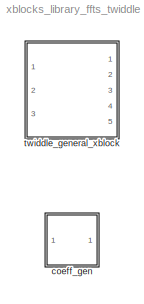
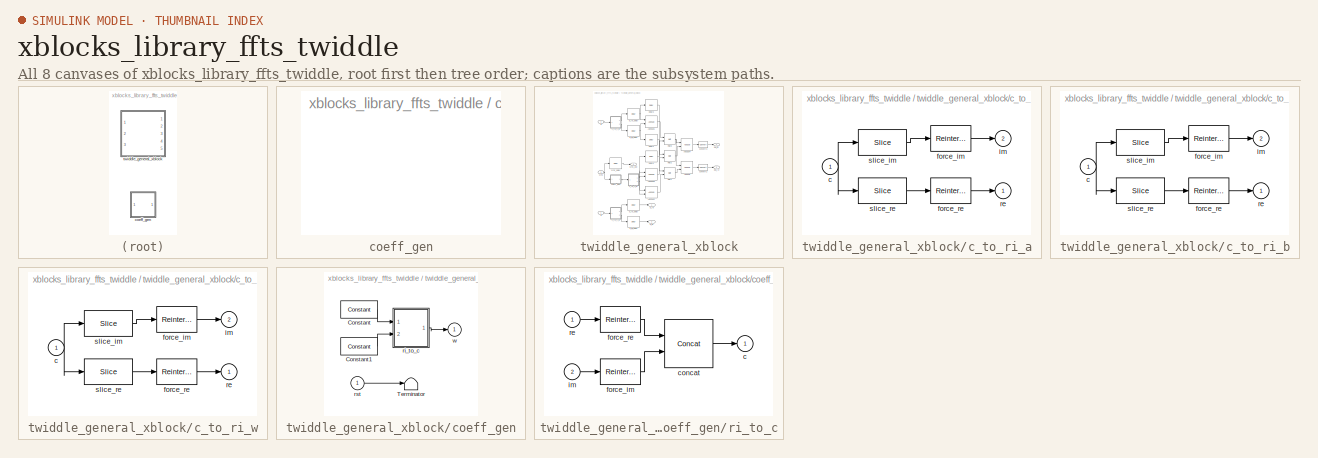
[diagram: thumbnail index - all 8 canvases of the model, root first then tree order]
MODEL xblocks_library_ffts_twiddle
KIND library
BLOCK [SubSystem] coeff_gen
  FunctionWithSeparateData = off
  MaskHideContents = off
  MinAlgLoopOccurrences = off
  Opaque = off
  OpenFcn = xblocks_library_ffts_twiddle_coeff_gen
  Ports = []
  PropExecContextOutsideSubsystem = off
  RTWSystemCode = Auto
  RequestExecContextInheritance = off
  SID = 1
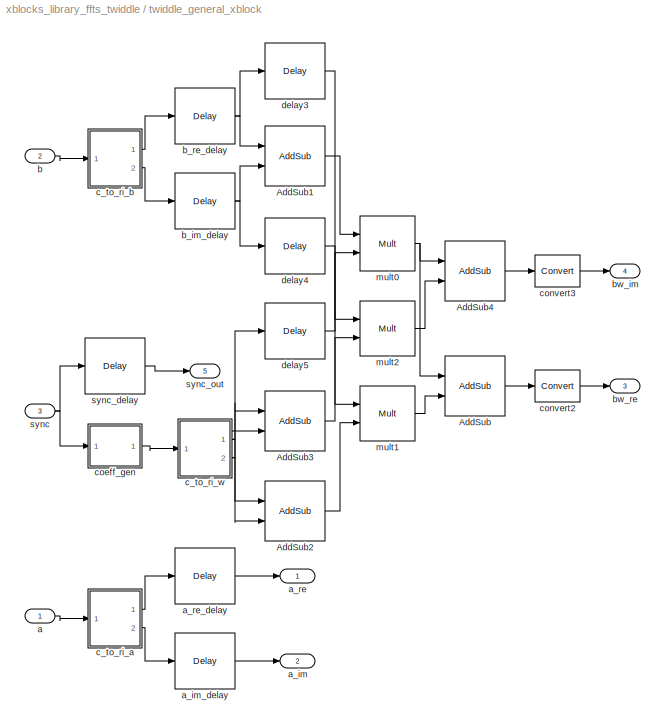
BLOCK [SubSystem] twiddle_general_xblock
  AttributesFormatString = data=(18,17)\ncoeffs=(17,15)\nVirtex5\n(Truncate,Wrap)\ntwiddle_general_3mult
  FunctionWithSeparateData = off
  MaskCallbackString = |||||||||||||||||||||
  MaskDescription = Generaized twiddle\n(xBlock version)
  MaskEnableString = on,on,on,on,on,on,on,on,on,on,on,on,on,on,on,on,on,on,on,on,on,on
  MaskHideContents = off
  MaskIconFrame = on
  MaskIconOpaque = on
  MaskIconRotate = none
  MaskIconUnits = autoscale
  MaskInitialization = config.source = str2func('fft_twiddle_init_xblock');\nconfig.toplevel = gcb;\nconfig.depend = get_dependlist('fft_twiddle');\nset_param(gcb,'LinkStatus','inactive');\nxBlock(config, ...\n      {config.toplevel,...\n      'FFTSize',FFTSize,...\n      'Coeffs',Coeffs,...\n      'ActualCoeffs',ActualCoeffs, ...\n      'StepPeriod',StepPeriod,...\n      'input_bit_width',input_bit_width,...\n      'co...<+625ch>
  MaskPortRotate = default
  MaskPromptString = FFT Size|Coefficients:|Actual Coefficients |Coefficient Step Period (2^?)|Coefficient Bit Width|Input Bit Width|BRAM Latency|Add Latency (Hardcoded to 2 in dsp48e mode)|Multiplication latency (Hardcoded to   in dsp48e mode)|Convert Latency|Input Latency|Mux Latency|Negate_latency|Quantization Behavior|Overflow Behavior|Architecture|Store coefficients in BRAM|Use behavioral HDL for multlipliers |Us...<+98ch>
  MaskSelfModifiable = on
  MaskStyleString = edit,edit,edit,edit,edit,edit,edit,edit,edit,edit,edit,edit,edit,popup(Truncate|Round  (unbiased: +/- Inf)|Round  (unbiased: Even Values)),popup(Wrap|Saturate|Error),popup(Virtex5),checkbox,checkbox,checkbox,popup(logic|multipliers),checkbox,checkbox
  MaskTabNameString = Basic,Basic,Basic,Basic,Basic,Basic,Latency,Latency,Latency,Latency,Latency,Latency,Latency,Implementation,Implementation,Implementation,Implementation,Implementation,Implementation,Implementation,Implementation,Implementation
  MaskToolTipString = on,on,on,on,on,on,on,on,on,on,on,on,on,on,on,on,on,on,on,on,on,on
  MaskTunableValueString = on,on,on,on,on,on,on,on,on,on,on,on,on,on,on,on,on,on,on,on,on,on
  MaskType = twiddle_general
  MaskValueString = 4|3||0|18|18|1|1|1|1|0|1|0|Truncate|Wrap|Virtex5|on|off|off|multipliers|on|off
  MaskVariables = FFTSize=@1;Coeffs=@2;ActualCoeffs=@3;StepPeriod=@4;coeff_bit_width=@5;input_bit_width=@6;bram_latency=@7;add_latency=@8;mult_latency=@9;conv_latency=@10;input_latency=@11;mux_latency=@12;negate_latency=@13;quantization=&14;overflow=&15;arch=&16;coeffs_bram=&17;use_hdl=&18;use_embedded=&19;opt_target=&20;biplex=&21;use_dsp48_mults=@22;
  MaskVisibilityString = on,on,on,on,on,on,on,on,on,on,on,on,on,on,on,on,on,on,on,on,on,on
  MinAlgLoopOccurrences = off
  Opaque = off
  Ports = [3, 5]
  PropExecContextOutsideSubsystem = off
  RTWSystemCode = Auto
  RequestExecContextInheritance = off
  SID = 4246
  UserData = DataTag0
  UserDataPersistent = on
BLOCK [Reference] twiddle_general_xblock/AddSub  REF=xbsIndex_r4/AddSub
  Ports = [2, 1]
  SID = 2191
  SourceBlock = xbsIndex_r4/AddSub
  SourceType = Xilinx Adder/Subtracter Block
  arith_type = Unsigned
  bin_pt = 14
  block_type = addsub
  block_version = 11.4
  dbl_ovrd = off
  en = off
  has_advanced_control = 0
  hw_selection = Fabric
  latency = 1
  mode = Subtraction
  n_bits = 16
  overflow = Wrap
  pipelined = off
  precision = Full
  quantization = Truncate
  sg_icon_stat = 60,60,2,1,white,blue,0,f9b6405b,right,
  sg_mask_display = fprintf('','COMMENT: begin icon graphics');\npatch([0 1 1 0 ],[0 0 1 1 ],[0.77 0.82 0.91]);\npatch([0.233333 0.0666667 0.3 0.0666667 0.233333 0.5 0.566667 0.633333 0.916667 0.7 0.483333 0.333333 0.583333 0.333333 0.483333 0.7 0.916667 0.633333 0.566667 0.5 0.233333 ],[0.1 0.266667 0.5 0.733333 0.9 0.9 0.833333 0.9 0.9 0.683333 0.9 0.75 0.5 0.25 0.1 0.316667 0.1 0.1 0.166667 0.1 0.1 ],[0.98 0.96 0....<+390ch>  <repeated x5 — deduplicated; at blocks: AddSub, AddSub1, AddSub2, AddSub3, AddSub4>
  sggui_pos = -1,-1,-1,-1
  use_behavioral_HDL = on
  use_carryin = off
  use_carryout = off
  xl_area = [0,0,0,0,0,0,0]
  xl_use_area = off
BLOCK [Reference] twiddle_general_xblock/AddSub1  REF=xbsIndex_r4/AddSub
  Ports = [2, 1]
  SID = 2182
  SourceBlock = xbsIndex_r4/AddSub
  SourceType = Xilinx Adder/Subtracter Block
  arith_type = Unsigned
  bin_pt = 14
  block_type = addsub
  block_version = 11.4
  dbl_ovrd = off
  en = off
  has_advanced_control = 0
  hw_selection = Fabric
  latency = 1
  mode = Addition
  n_bits = 16
  overflow = Wrap
  pipelined = off
  precision = Full
  quantization = Truncate
  sg_icon_stat = 60,60,2,1,white,blue,0,8ff03b5e,right,
  sggui_pos = -1,-1,-1,-1
  use_behavioral_HDL = on
  use_carryin = off
  use_carryout = off
  xl_area = [0,0,0,0,0,0,0]
  xl_use_area = off
BLOCK [Reference] twiddle_general_xblock/AddSub2  REF=xbsIndex_r4/AddSub
  Ports = [2, 1]
  SID = 2183
  SourceBlock = xbsIndex_r4/AddSub
  SourceType = Xilinx Adder/Subtracter Block
  arith_type = Unsigned
  bin_pt = 14
  block_type = addsub
  block_version = 11.4
  dbl_ovrd = off
  en = off
  has_advanced_control = 0
  hw_selection = Fabric
  latency = 1
  mode = Addition
  n_bits = 16
  overflow = Wrap
  pipelined = off
  precision = Full
  quantization = Truncate
  sg_icon_stat = 60,60,2,1,white,blue,0,8ff03b5e,right,
  sggui_pos = -1,-1,-1,-1
  use_behavioral_HDL = on
  use_carryin = off
  use_carryout = off
  xl_area = [0,0,0,0,0,0,0]
  xl_use_area = off
BLOCK [Reference] twiddle_general_xblock/AddSub3  REF=xbsIndex_r4/AddSub
  Ports = [2, 1]
  SID = 2184
  SourceBlock = xbsIndex_r4/AddSub
  SourceType = Xilinx Adder/Subtracter Block
  arith_type = Unsigned
  bin_pt = 14
  block_type = addsub
  block_version = 11.4
  dbl_ovrd = off
  en = off
  has_advanced_control = 0
  hw_selection = Fabric
  latency = 1
  mode = Subtraction
  n_bits = 16
  overflow = Wrap
  pipelined = off
  precision = Full
  quantization = Truncate
  sg_icon_stat = 60,60,2,1,white,blue,0,f9b6405b,right,
  sggui_pos = -1,-1,-1,-1
  use_behavioral_HDL = on
  use_carryin = off
  use_carryout = off
  xl_area = [0,0,0,0,0,0,0]
  xl_use_area = off
BLOCK [Reference] twiddle_general_xblock/AddSub4  REF=xbsIndex_r4/AddSub
  Ports = [2, 1]
  SID = 2192
  SourceBlock = xbsIndex_r4/AddSub
  SourceType = Xilinx Adder/Subtracter Block
  arith_type = Unsigned
  bin_pt = 14
  block_type = addsub
  block_version = 11.4
  dbl_ovrd = off
  en = off
  has_advanced_control = 0
  hw_selection = Fabric
  latency = 1
  mode = Addition
  n_bits = 16
  overflow = Wrap
  pipelined = off
  precision = Full
  quantization = Truncate
  sg_icon_stat = 60,60,2,1,white,blue,0,8ff03b5e,right,
  sggui_pos = -1,-1,-1,-1
  use_behavioral_HDL = on
  use_carryin = off
  use_carryout = off
  xl_area = [0,0,0,0,0,0,0]
  xl_use_area = off
BLOCK [Inport] twiddle_general_xblock/a
  IconDisplay = Port number
  SID = 4247
BLOCK [Outport] twiddle_general_xblock/a_im
  IconDisplay = Port number
  Port = 2
  SID = 4259
BLOCK [Reference] twiddle_general_xblock/a_im_delay  REF=xbsIndex_r4/Delay
  Ports = [1, 1]
  SID = 2158
  SourceBlock = xbsIndex_r4/Delay
  SourceType = Xilinx Delay Block
  block_type = delay
  block_version = 11.4
  dbl_ovrd = off
  en = off
  has_advanced_control = 0
  infoedit = Hardware notes: A delay line is a chain, each link of which is an SRL16 followed by a flip-flop.
  latency = 5
  reg_retiming = on
  sg_icon_stat = 60,56,1,1,white,blue,0,ec356abf,right,
  sg_mask_display = fprintf('','COMMENT: begin icon graphics');\npatch([0 1 1 0 ],[0 0 1 1 ],[0.77 0.82 0.91]);\npatch([0.25 0.1 0.316667 0.1 0.25 0.5 0.566667 0.633333 0.9 0.683333 0.483333 0.333333 0.533333 0.333333 0.483333 0.683333 0.9 0.633333 0.566667 0.5 0.25 ],[0.107143 0.267857 0.5 0.732143 0.892857 0.892857 0.821429 0.892857 0.892857 0.660714 0.875 0.714286 0.5 0.285714 0.125 0.339286 0.107143 0.107143 0.17...<+249ch>  <repeated x8 — deduplicated; at blocks: a_im_delay, a_re_delay, b_im_delay, b_re_delay, delay3, delay4, delay5, sync_delay>
  sggui_pos = -1,-1,-1,-1
  xl_area = [0,0,0,0,0,0,0]
  xl_use_area = off
BLOCK [Outport] twiddle_general_xblock/a_re
  IconDisplay = Port number
  SID = 4258
BLOCK [Reference] twiddle_general_xblock/a_re_delay  REF=xbsIndex_r4/Delay
  Ports = [1, 1]
  SID = 2157
  SourceBlock = xbsIndex_r4/Delay
  SourceType = Xilinx Delay Block
  block_type = delay
  block_version = 11.4
  dbl_ovrd = off
  en = off
  has_advanced_control = 0
  infoedit = Hardware notes: A delay line is a chain, each link of which is an SRL16 followed by a flip-flop.
  latency = 5
  reg_retiming = on
  sg_icon_stat = 60,56,1,1,white,blue,0,ec356abf,right,
  sggui_pos = -1,-1,-1,-1
  xl_area = [0,0,0,0,0,0,0]
  xl_use_area = off
BLOCK [Inport] twiddle_general_xblock/b
  IconDisplay = Port number
  Port = 2
  SID = 4248
BLOCK [Reference] twiddle_general_xblock/b_im_delay  REF=xbsIndex_r4/Delay
  Ports = [1, 1]
  SID = 2160
  SourceBlock = xbsIndex_r4/Delay
  SourceType = Xilinx Delay Block
  block_type = delay
  block_version = 11.4
  dbl_ovrd = off
  en = off
  has_advanced_control = 0
  infoedit = Hardware notes: A delay line is a chain, each link of which is an SRL16 followed by a flip-flop.
  latency = 1
  reg_retiming = on
  sg_icon_stat = 60,56,1,1,white,blue,0,07b98262,right,
  sggui_pos = -1,-1,-1,-1
  xl_area = [0,0,0,0,0,0,0]
  xl_use_area = off
BLOCK [Reference] twiddle_general_xblock/b_re_delay  REF=xbsIndex_r4/Delay
  Ports = [1, 1]
  SID = 2159
  SourceBlock = xbsIndex_r4/Delay
  SourceType = Xilinx Delay Block
  block_type = delay
  block_version = 11.4
  dbl_ovrd = off
  en = off
  has_advanced_control = 0
  infoedit = Hardware notes: A delay line is a chain, each link of which is an SRL16 followed by a flip-flop.
  latency = 1
  reg_retiming = on
  sg_icon_stat = 60,56,1,1,white,blue,0,07b98262,right,
  sggui_pos = -1,-1,-1,-1
  xl_area = [0,0,0,0,0,0,0]
  xl_use_area = off
BLOCK [Outport] twiddle_general_xblock/bw_im
  IconDisplay = Port number
  Port = 4
  SID = 4261
BLOCK [Outport] twiddle_general_xblock/bw_re
  IconDisplay = Port number
  Port = 3
  SID = 4260
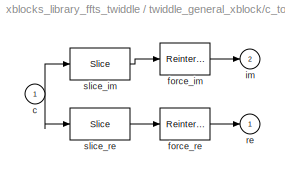
BLOCK [SubSystem] twiddle_general_xblock/c_to_ri_a
  AttributesFormatString = 18_17 r/i
  FunctionWithSeparateData = off
  MaskHideContents = off
  MinAlgLoopOccurrences = off
  Opaque = off
  Ports = [1, 2]
  PropExecContextOutsideSubsystem = off
  RTWSystemCode = Auto
  RequestExecContextInheritance = off
  SID = 2140
BLOCK [Inport] twiddle_general_xblock/c_to_ri_a/c
  IconDisplay = Port number
  SID = 2141
BLOCK [Reference] twiddle_general_xblock/c_to_ri_a/force_im  REF=xbsIndex_r4/Reinterpret
  Ports = [1, 1]
  SID = 2144
  SourceBlock = xbsIndex_r4/Reinterpret
  SourceType = Xilinx Type Reinterpreter Block
  arith_type = Signed  (2's comp)
  bin_pt = 17
  block_type = reinterpret
  block_version = 11.4
  force_arith_type = on
  force_bin_pt = on
  has_advanced_control = 0
  infoedit = Changes signal type without altering the binary representation.   You can changed the signal between signed and unsigned, and relocate the binary point.<br><br>Hardware notes: In hardware this block costs nothing.<br><br>Example:  Suppose the input is 6 bits wide, signed, with 2 fractional bits, and the output is forced to unsigned with 0 fractional bits.  Then an input of -2.0 (1110.00 in binary ...<+59ch>  <repeated x8 — deduplicated; at blocks: force_im, force_re>
  sg_icon_stat = 50,32,1,1,white,blue,0,6b04d0b0,right,
  sg_mask_display = fprintf('','COMMENT: begin icon graphics');\npatch([0 1 1 0 ],[0 0 1 1 ],[0.77 0.82 0.91]);\npatch([0.32 0.22 0.36 0.22 0.32 0.48 0.52 0.56 0.74 0.6 0.46 0.36 0.5 0.36 0.46 0.6 0.74 0.56 0.52 0.48 0.32 ],[0.09375 0.25 0.46875 0.6875 0.84375 0.84375 0.78125 0.84375 0.84375 0.625 0.84375 0.6875 0.46875 0.25 0.09375 0.3125 0.09375 0.09375 0.15625 0.09375 0.09375 ],[0.98 0.96 0.92]);\nplot([0 1 1 0 0 ...<+178ch>  <repeated x8 — deduplicated; at blocks: force_im, force_re>
  sggui_pos = -1,-1,-1,-1
BLOCK [Reference] twiddle_general_xblock/c_to_ri_a/force_re  REF=xbsIndex_r4/Reinterpret
  Ports = [1, 1]
  SID = 2145
  SourceBlock = xbsIndex_r4/Reinterpret
  SourceType = Xilinx Type Reinterpreter Block
  arith_type = Signed  (2's comp)
  bin_pt = 17
  block_type = reinterpret
  block_version = 11.4
  force_arith_type = on
  force_bin_pt = on
  has_advanced_control = 0
  sg_icon_stat = 50,32,1,1,white,blue,0,6b04d0b0,right,
  sggui_pos = -1,-1,-1,-1
BLOCK [Outport] twiddle_general_xblock/c_to_ri_a/im
  IconDisplay = Port number
  Port = 2
  SID = 2143
BLOCK [Outport] twiddle_general_xblock/c_to_ri_a/re
  IconDisplay = Port number
  SID = 2142
BLOCK [Reference] twiddle_general_xblock/c_to_ri_a/slice_im  REF=xbsIndex_r4/Slice
  Ports = [1, 1]
  SID = 2146
  SourceBlock = xbsIndex_r4/Slice
  SourceType = Xilinx Bit Slice Extractor Block
  base0 = LSB of Input
  base1 = MSB of Input
  bit0 = 0
  bit1 = 0
  block_type = slice
  block_version = 11.4
  boolean_output = off
  dbl_ovrd = off
  has_advanced_control = 0
  infoedit = Extracts a given range of bits from each input sample and presents it at the output.  The output type is ordinarily unsigned with binary point at zero, but can be Boolean when the slice is one bit wide.<br><br>Hardware notes: In hardware this block costs nothing.  <repeated x6 — deduplicated; at blocks: slice_im, slice_re>
  mode = Lower Bit Location + Width
  nbits = 18
  sg_icon_stat = 60,32,1,1,white,blue,0,1fd851a7,right,
  sg_mask_display = fprintf('','COMMENT: begin icon graphics');\npatch([0 1 1 0 ],[0 0 1 1 ],[0.77 0.82 0.91]);\npatch([0.35 0.266667 0.383333 0.266667 0.35 0.483333 0.516667 0.55 0.7 0.583333 0.466667 0.383333 0.5 0.383333 0.466667 0.583333 0.7 0.55 0.516667 0.483333 0.35 ],[0.09375 0.25 0.46875 0.6875 0.84375 0.84375 0.78125 0.84375 0.84375 0.625 0.84375 0.6875 0.46875 0.25 0.09375 0.3125 0.09375 0.09375 0.15625 0....<+241ch>  <repeated x6 — deduplicated; at blocks: slice_im, slice_re>
  sggui_pos = -1,-1,-1,-1
BLOCK [Reference] twiddle_general_xblock/c_to_ri_a/slice_re  REF=xbsIndex_r4/Slice
  Ports = [1, 1]
  SID = 2147
  SourceBlock = xbsIndex_r4/Slice
  SourceType = Xilinx Bit Slice Extractor Block
  base0 = LSB of Input
  base1 = MSB of Input
  bit0 = 0
  bit1 = 0
  block_type = slice
  block_version = 11.4
  boolean_output = off
  dbl_ovrd = off
  has_advanced_control = 0
  mode = Upper Bit Location + Width
  nbits = 18
  sg_icon_stat = 60,32,1,1,white,blue,0,1fd851a7,right,
  sggui_pos = -1,-1,-1,-1
BLOCK [SubSystem] twiddle_general_xblock/c_to_ri_b
  AttributesFormatString = 18_17 r/i
  FunctionWithSeparateData = off
  MaskHideContents = off
  MinAlgLoopOccurrences = off
  Opaque = off
  Ports = [1, 2]
  PropExecContextOutsideSubsystem = off
  RTWSystemCode = Auto
  RequestExecContextInheritance = off
  SID = 2148
BLOCK [Inport] twiddle_general_xblock/c_to_ri_b/c
  IconDisplay = Port number
  SID = 2149
BLOCK [Reference] twiddle_general_xblock/c_to_ri_b/force_im  REF=xbsIndex_r4/Reinterpret
  Ports = [1, 1]
  SID = 2152
  SourceBlock = xbsIndex_r4/Reinterpret
  SourceType = Xilinx Type Reinterpreter Block
  arith_type = Signed  (2's comp)
  bin_pt = 17
  block_type = reinterpret
  block_version = 11.4
  force_arith_type = on
  force_bin_pt = on
  has_advanced_control = 0
  sg_icon_stat = 50,32,1,1,white,blue,0,6b04d0b0,right,
  sggui_pos = -1,-1,-1,-1
BLOCK [Reference] twiddle_general_xblock/c_to_ri_b/force_re  REF=xbsIndex_r4/Reinterpret
  Ports = [1, 1]
  SID = 2153
  SourceBlock = xbsIndex_r4/Reinterpret
  SourceType = Xilinx Type Reinterpreter Block
  arith_type = Signed  (2's comp)
  bin_pt = 17
  block_type = reinterpret
  block_version = 11.4
  force_arith_type = on
  force_bin_pt = on
  has_advanced_control = 0
  sg_icon_stat = 50,32,1,1,white,blue,0,6b04d0b0,right,
  sggui_pos = -1,-1,-1,-1
BLOCK [Outport] twiddle_general_xblock/c_to_ri_b/im
  IconDisplay = Port number
  Port = 2
  SID = 2151
BLOCK [Outport] twiddle_general_xblock/c_to_ri_b/re
  IconDisplay = Port number
  SID = 2150
BLOCK [Reference] twiddle_general_xblock/c_to_ri_b/slice_im  REF=xbsIndex_r4/Slice
  Ports = [1, 1]
  SID = 2154
  SourceBlock = xbsIndex_r4/Slice
  SourceType = Xilinx Bit Slice Extractor Block
  base0 = LSB of Input
  base1 = MSB of Input
  bit0 = 0
  bit1 = 0
  block_type = slice
  block_version = 11.4
  boolean_output = off
  dbl_ovrd = off
  has_advanced_control = 0
  mode = Lower Bit Location + Width
  nbits = 18
  sg_icon_stat = 60,32,1,1,white,blue,0,1fd851a7,right,
  sggui_pos = -1,-1,-1,-1
BLOCK [Reference] twiddle_general_xblock/c_to_ri_b/slice_re  REF=xbsIndex_r4/Slice
  Ports = [1, 1]
  SID = 2155
  SourceBlock = xbsIndex_r4/Slice
  SourceType = Xilinx Bit Slice Extractor Block
  base0 = LSB of Input
  base1 = MSB of Input
  bit0 = 0
  bit1 = 0
  block_type = slice
  block_version = 11.4
  boolean_output = off
  dbl_ovrd = off
  has_advanced_control = 0
  mode = Upper Bit Location + Width
  nbits = 18
  sg_icon_stat = 60,32,1,1,white,blue,0,1fd851a7,right,
  sggui_pos = -1,-1,-1,-1
BLOCK [SubSystem] twiddle_general_xblock/c_to_ri_w
  FunctionWithSeparateData = off
  MaskHideContents = off
  MinAlgLoopOccurrences = off
  Opaque = off
  Ports = [1, 2]
  PropExecContextOutsideSubsystem = off
  RTWSystemCode = Auto
  RequestExecContextInheritance = off
  SID = 2174
BLOCK [Inport] twiddle_general_xblock/c_to_ri_w/c
  IconDisplay = Port number
  SID = 2175
BLOCK [Reference] twiddle_general_xblock/c_to_ri_w/force_im  REF=xbsIndex_r4/Reinterpret
  Ports = [1, 1]
  SID = 2178
  SourceBlock = xbsIndex_r4/Reinterpret
  SourceType = Xilinx Type Reinterpreter Block
  arith_type = Signed  (2's comp)
  bin_pt = 15
  block_type = reinterpret
  block_version = 11.4
  force_arith_type = on
  force_bin_pt = on
  has_advanced_control = 0
  sg_icon_stat = 50,32,1,1,white,blue,0,6b04d0b0,right,
  sggui_pos = -1,-1,-1,-1
BLOCK [Reference] twiddle_general_xblock/c_to_ri_w/force_re  REF=xbsIndex_r4/Reinterpret
  Ports = [1, 1]
  SID = 2179
  SourceBlock = xbsIndex_r4/Reinterpret
  SourceType = Xilinx Type Reinterpreter Block
  arith_type = Signed  (2's comp)
  bin_pt = 15
  block_type = reinterpret
  block_version = 11.4
  force_arith_type = on
  force_bin_pt = on
  has_advanced_control = 0
  sg_icon_stat = 50,32,1,1,white,blue,0,6b04d0b0,right,
  sggui_pos = -1,-1,-1,-1
BLOCK [Outport] twiddle_general_xblock/c_to_ri_w/im
  IconDisplay = Port number
  Port = 2
  SID = 2177
BLOCK [Outport] twiddle_general_xblock/c_to_ri_w/re
  IconDisplay = Port number
  SID = 2176
BLOCK [Reference] twiddle_general_xblock/c_to_ri_w/slice_im  REF=xbsIndex_r4/Slice
  Ports = [1, 1]
  SID = 2180
  SourceBlock = xbsIndex_r4/Slice
  SourceType = Xilinx Bit Slice Extractor Block
  base0 = LSB of Input
  base1 = MSB of Input
  bit0 = 0
  bit1 = 0
  block_type = slice
  block_version = 11.4
  boolean_output = off
  dbl_ovrd = off
  has_advanced_control = 0
  mode = Lower Bit Location + Width
  nbits = 17
  sg_icon_stat = 60,32,1,1,white,blue,0,1fd851a7,right,
  sggui_pos = -1,-1,-1,-1
BLOCK [Reference] twiddle_general_xblock/c_to_ri_w/slice_re  REF=xbsIndex_r4/Slice
  Ports = [1, 1]
  SID = 2181
  SourceBlock = xbsIndex_r4/Slice
  SourceType = Xilinx Bit Slice Extractor Block
  base0 = LSB of Input
  base1 = MSB of Input
  bit0 = 0
  bit1 = 0
  block_type = slice
  block_version = 11.4
  boolean_output = off
  dbl_ovrd = off
  has_advanced_control = 0
  mode = Upper Bit Location + Width
  nbits = 17
  sg_icon_stat = 60,32,1,1,white,blue,0,1fd851a7,right,
  sggui_pos = -1,-1,-1,-1
BLOCK [SubSystem] twiddle_general_xblock/coeff_gen
  FunctionWithSeparateData = off
  MaskHideContents = off
  MinAlgLoopOccurrences = off
  Opaque = off
  Ports = [1, 1]
  PropExecContextOutsideSubsystem = off
  RTWSystemCode = Auto
  RequestExecContextInheritance = off
  SID = 2161
BLOCK [Reference] twiddle_general_xblock/coeff_gen/Constant  REF=xbsIndex_r4/Constant
  Ports = [0, 1]
  SID = 2165
  SourceBlock = xbsIndex_r4/Constant
  SourceType = Xilinx Constant Block Block
  arith_type = Signed (2's comp)
  bin_pt = 16
  block_type = constant
  block_version = 11.4
  carry = CIN
  const = -0.707107543945312
  dbl_ovrd = off
  dsp48_infoedit = The use of this block for DSP48 instructions is deprecated.  Please use the Opmode block.
  equ = P=C
  explicit_period = on
  has_advanced_control = 0
  inp1 = P
  inp2 = PCIN>>17
  n_bits = 18
  opr = +
  opselect = C
  period = 1
  sg_icon_stat = 55,26,0,1,white,blue,0,b712d0e0,right,
  sg_mask_display = fprintf('','COMMENT: begin icon graphics');\npatch([0 1 1 0 ],[0 0 1 1 ],[0.77 0.82 0.91]);\npatch([0.363636 0.290909 0.4 0.290909 0.363636 0.490909 0.527273 0.563636 0.690909 0.581818 0.472727 0.4 0.509091 0.4 0.472727 0.581818 0.690909 0.563636 0.527273 0.490909 0.363636 ],[0.115385 0.269231 0.5 0.730769 0.884615 0.884615 0.807692 0.884615 0.884615 0.653846 0.884615 0.730769 0.5 0.269231 0.11538...<+297ch>
  sggui_pos = -1,-1,-1,-1
BLOCK [Reference] twiddle_general_xblock/coeff_gen/Constant1  REF=xbsIndex_r4/Constant
  Ports = [0, 1]
  SID = 2166
  SourceBlock = xbsIndex_r4/Constant
  SourceType = Xilinx Constant Block Block
  arith_type = Signed (2's comp)
  bin_pt = 16
  block_type = constant
  block_version = 11.4
  carry = CIN
  const = -0.707107543945312
  dbl_ovrd = off
  dsp48_infoedit = The use of this block for DSP48 instructions is deprecated.  Please use the Opmode block.
  equ = P=C
  explicit_period = on
  has_advanced_control = 0
  inp1 = P
  inp2 = PCIN>>17
  n_bits = 18
  opr = +
  opselect = C
  period = 1
  sg_icon_stat = 55,26,0,1,white,blue,0,b712d0e0,right,
  sg_mask_display = fprintf('','COMMENT: begin icon graphics');\npatch([0 1 1 0 ],[0 0 1 1 ],[0.77 0.82 0.91]);\npatch([0.363636 0.290909 0.4 0.290909 0.363636 0.490909 0.527273 0.563636 0.690909 0.581818 0.472727 0.4 0.509091 0.4 0.472727 0.581818 0.690909 0.563636 0.527273 0.490909 0.363636 ],[0.115385 0.269231 0.5 0.730769 0.884615 0.884615 0.807692 0.884615 0.884615 0.653846 0.884615 0.730769 0.5 0.269231 0.11538...<+297ch>
  sggui_pos = -1,-1,-1,-1
BLOCK [Terminator] twiddle_general_xblock/coeff_gen/Terminator
  SID = 2164
BLOCK [SubSystem] twiddle_general_xblock/coeff_gen/ri_to_c
  FunctionWithSeparateData = off
  MaskHideContents = off
  MinAlgLoopOccurrences = off
  Opaque = off
  Ports = [2, 1]
  PropExecContextOutsideSubsystem = off
  RTWSystemCode = Auto
  RequestExecContextInheritance = off
  SID = 2167
BLOCK [Outport] twiddle_general_xblock/coeff_gen/ri_to_c/c
  IconDisplay = Port number
  SID = 2170
BLOCK [Reference] twiddle_general_xblock/coeff_gen/ri_to_c/concat  REF=xbsIndex_r4/Concat
  Ports = [2, 1]
  SID = 2171
  SourceBlock = xbsIndex_r4/Concat
  SourceType = Xilinx Bus Concatenator Block
  block_type = concat
  block_version = 11.4
  dbl_ovrd = off
  has_advanced_control = 0
  infoedit = Concatenates two or more inputs.  Output will be cast to an unsigned value with the binary point at zero.
  num_inputs = 2
  sg_icon_stat = 60,60,2,1,white,blue,0,97b7e8d2,right,
  sg_mask_display = fprintf('','COMMENT: begin icon graphics');\npatch([0 1 1 0 ],[0 0 1 1 ],[0.77 0.82 0.91]);\npatch([0.233333 0.0666667 0.3 0.0666667 0.233333 0.5 0.566667 0.633333 0.916667 0.7 0.483333 0.333333 0.583333 0.333333 0.483333 0.7 0.916667 0.633333 0.566667 0.5 0.233333 ],[0.1 0.266667 0.5 0.733333 0.9 0.9 0.833333 0.9 0.9 0.683333 0.9 0.75 0.5 0.25 0.1 0.316667 0.1 0.1 0.166667 0.1 0.1 ],[0.98 0.96 0....<+252ch>
  sggui_pos = -1,-1,-1,-1
BLOCK [Reference] twiddle_general_xblock/coeff_gen/ri_to_c/force_im  REF=xbsIndex_r4/Reinterpret
  Ports = [1, 1]
  SID = 2172
  SourceBlock = xbsIndex_r4/Reinterpret
  SourceType = Xilinx Type Reinterpreter Block
  arith_type = Unsigned
  bin_pt = 0
  block_type = reinterpret
  block_version = 11.4
  force_arith_type = on
  force_bin_pt = on
  has_advanced_control = 0
  sg_icon_stat = 50,32,1,1,white,blue,0,6b04d0b0,right,
  sggui_pos = -1,-1,-1,-1
BLOCK [Reference] twiddle_general_xblock/coeff_gen/ri_to_c/force_re  REF=xbsIndex_r4/Reinterpret
  Ports = [1, 1]
  SID = 2173
  SourceBlock = xbsIndex_r4/Reinterpret
  SourceType = Xilinx Type Reinterpreter Block
  arith_type = Unsigned
  bin_pt = 0
  block_type = reinterpret
  block_version = 11.4
  force_arith_type = on
  force_bin_pt = on
  has_advanced_control = 0
  sg_icon_stat = 50,32,1,1,white,blue,0,6b04d0b0,right,
  sggui_pos = -1,-1,-1,-1
BLOCK [Inport] twiddle_general_xblock/coeff_gen/ri_to_c/im
  IconDisplay = Port number
  Port = 2
  SID = 2169
BLOCK [Inport] twiddle_general_xblock/coeff_gen/ri_to_c/re
  IconDisplay = Port number
  SID = 2168
BLOCK [Inport] twiddle_general_xblock/coeff_gen/rst
  IconDisplay = Port number
  SID = 2162
BLOCK [Outport] twiddle_general_xblock/coeff_gen/w
  IconDisplay = Port number
  SID = 2163
BLOCK [Reference] twiddle_general_xblock/convert2  REF=xbsIndex_r4/Convert
  Ports = [1, 1]
  SID = 2193
  SourceBlock = xbsIndex_r4/Convert
  SourceType = Xilinx Type Converter Block
  arith_type = Signed  (2's comp)
  bin_pt = 19
  block_type = convert
  block_version = 11.4
  dbl_ovrd = off
  has_advanced_control = 0
  infoedit = Hardware notes: rounding and saturating require hardware resources; truncating and wrapping do not.
  latency = 0
  n_bits = 23
  overflow = Wrap
  pipeline = on
  quantization = Truncate
  sg_icon_stat = 45,32,1,1,white,blue,0,edca21da,right,
  sg_mask_display = fprintf('','COMMENT: begin icon graphics');\npatch([0 1 1 0 ],[0 0 1 1 ],[0.77 0.82 0.91]);\npatch([0.311111 0.2 0.355556 0.2 0.311111 0.488889 0.533333 0.577778 0.777778 0.622222 0.466667 0.355556 0.511111 0.355556 0.466667 0.622222 0.777778 0.577778 0.533333 0.488889 0.311111 ],[0.09375 0.25 0.46875 0.6875 0.84375 0.84375 0.78125 0.84375 0.84375 0.625 0.84375 0.6875 0.46875 0.25 0.09375 0.3125 0...<+265ch>
  sggui_pos = -1,-1,-1,-1
  xl_area = [0,0,0,0,0,0,0]
  xl_use_area = off
BLOCK [Reference] twiddle_general_xblock/convert3  REF=xbsIndex_r4/Convert
  Ports = [1, 1]
  SID = 2194
  SourceBlock = xbsIndex_r4/Convert
  SourceType = Xilinx Type Converter Block
  arith_type = Signed  (2's comp)
  bin_pt = 19
  block_type = convert
  block_version = 11.4
  dbl_ovrd = off
  has_advanced_control = 0
  infoedit = Hardware notes: rounding and saturating require hardware resources; truncating and wrapping do not.
  latency = 0
  n_bits = 23
  overflow = Wrap
  pipeline = on
  quantization = Truncate
  sg_icon_stat = 45,32,1,1,white,blue,0,edca21da,right,
  sg_mask_display = fprintf('','COMMENT: begin icon graphics');\npatch([0 1 1 0 ],[0 0 1 1 ],[0.77 0.82 0.91]);\npatch([0.311111 0.2 0.355556 0.2 0.311111 0.488889 0.533333 0.577778 0.777778 0.622222 0.466667 0.355556 0.511111 0.355556 0.466667 0.622222 0.777778 0.577778 0.533333 0.488889 0.311111 ],[0.09375 0.25 0.46875 0.6875 0.84375 0.84375 0.78125 0.84375 0.84375 0.625 0.84375 0.6875 0.46875 0.25 0.09375 0.3125 0...<+265ch>
  sggui_pos = -1,-1,-1,-1
  xl_area = [0,0,0,0,0,0,0]
  xl_use_area = off
BLOCK [Reference] twiddle_general_xblock/delay3  REF=xbsIndex_r4/Delay
  Ports = [1, 1]
  SID = 2185
  SourceBlock = xbsIndex_r4/Delay
  SourceType = Xilinx Delay Block
  block_type = delay
  block_version = 11.4
  dbl_ovrd = off
  en = off
  has_advanced_control = 0
  infoedit = Hardware notes: A delay line is a chain, each link of which is an SRL16 followed by a flip-flop.
  latency = 1
  reg_retiming = on
  sg_icon_stat = 60,56,1,1,white,blue,0,07b98262,right,
  sggui_pos = -1,-1,-1,-1
  xl_area = [0,0,0,0,0,0,0]
  xl_use_area = off
BLOCK [Reference] twiddle_general_xblock/delay4  REF=xbsIndex_r4/Delay
  Ports = [1, 1]
  SID = 2186
  SourceBlock = xbsIndex_r4/Delay
  SourceType = Xilinx Delay Block
  block_type = delay
  block_version = 11.4
  dbl_ovrd = off
  en = off
  has_advanced_control = 0
  infoedit = Hardware notes: A delay line is a chain, each link of which is an SRL16 followed by a flip-flop.
  latency = 1
  reg_retiming = on
  sg_icon_stat = 60,56,1,1,white,blue,0,07b98262,right,
  sggui_pos = -1,-1,-1,-1
  xl_area = [0,0,0,0,0,0,0]
  xl_use_area = off
BLOCK [Reference] twiddle_general_xblock/delay5  REF=xbsIndex_r4/Delay
  Ports = [1, 1]
  SID = 2187
  SourceBlock = xbsIndex_r4/Delay
  SourceType = Xilinx Delay Block
  block_type = delay
  block_version = 11.4
  dbl_ovrd = off
  en = off
  has_advanced_control = 0
  infoedit = Hardware notes: A delay line is a chain, each link of which is an SRL16 followed by a flip-flop.
  latency = 1
  reg_retiming = on
  sg_icon_stat = 60,56,1,1,white,blue,0,07b98262,right,
  sggui_pos = -1,-1,-1,-1
  xl_area = [0,0,0,0,0,0,0]
  xl_use_area = off
BLOCK [Reference] twiddle_general_xblock/mult0  REF=xbsIndex_r4/Mult
  Ports = [2, 1]
  SID = 2188
  SourceBlock = xbsIndex_r4/Mult
  SourceType = Xilinx Multiplier Block
  arith_type = Signed  (2's comp)
  bin_pt = 14
  block_type = mult
  block_version = 11.4
  dbl_ovrd = off
  en = off
  has_advanced_control = 0
  infoedit = Hardware notes: To check for the optimum internal pipeline stages of the dedicated multiplier you must select 'Test for optimum pipelining'.<br><br>Optimization Goal: For implementation into device fabric (LUTs), the Speed or Area optimization will take effect only if it's supported by IP for the particular device family. Otherwise, the results will be identical regardless of the selection.  <repeated x3 — deduplicated; at blocks: mult0, mult1, mult2>
  latency = 1
  n_bits = 16
  opt = Speed
  optimum_pipeline = off
  overflow = Wrap
  pipeline = on
  placement_style = Triangular
  precision = Full
  quantization = Truncate
  sg_icon_stat = 55,55,2,1,white,blue,0,beae5990,right,
  sg_mask_display = fprintf('','COMMENT: begin icon graphics');\npatch([0 1 1 0 ],[0 0 1 1 ],[0.77 0.82 0.91]);\npatch([0.236364 0.0727273 0.309091 0.0727273 0.236364 0.509091 0.581818 0.654545 0.945455 0.727273 0.509091 0.345455 0.581818 0.345455 0.509091 0.727273 0.945455 0.654545 0.581818 0.509091 0.236364 ],[0.109091 0.272727 0.509091 0.745455 0.909091 0.909091 0.836364 0.909091 0.909091 0.690909 0.909091 0.74545...<+466ch>  <repeated x3 — deduplicated; at blocks: mult0, mult1, mult2>
  sggui_pos = -1,-1,-1,-1
  use_behavioral_HDL = off
  use_embedded = off
  use_rpm = on
  xl_area = [0,0,0,0,0,0,0]
  xl_use_area = off
BLOCK [Reference] twiddle_general_xblock/mult1  REF=xbsIndex_r4/Mult
  Ports = [2, 1]
  SID = 2189
  SourceBlock = xbsIndex_r4/Mult
  SourceType = Xilinx Multiplier Block
  arith_type = Signed  (2's comp)
  bin_pt = 14
  block_type = mult
  block_version = 11.4
  dbl_ovrd = off
  en = off
  has_advanced_control = 0
  latency = 1
  n_bits = 16
  opt = Speed
  optimum_pipeline = off
  overflow = Wrap
  pipeline = on
  placement_style = Triangular
  precision = Full
  quantization = Truncate
  sg_icon_stat = 55,55,2,1,white,blue,0,beae5990,right,
  sggui_pos = -1,-1,-1,-1
  use_behavioral_HDL = off
  use_embedded = off
  use_rpm = on
  xl_area = [0,0,0,0,0,0,0]
  xl_use_area = off
BLOCK [Reference] twiddle_general_xblock/mult2  REF=xbsIndex_r4/Mult
  Ports = [2, 1]
  SID = 2190
  SourceBlock = xbsIndex_r4/Mult
  SourceType = Xilinx Multiplier Block
  arith_type = Signed  (2's comp)
  bin_pt = 14
  block_type = mult
  block_version = 11.4
  dbl_ovrd = off
  en = off
  has_advanced_control = 0
  latency = 1
  n_bits = 16
  opt = Speed
  optimum_pipeline = off
  overflow = Wrap
  pipeline = on
  placement_style = Triangular
  precision = Full
  quantization = Truncate
  sg_icon_stat = 55,55,2,1,white,blue,0,beae5990,right,
  sggui_pos = -1,-1,-1,-1
  use_behavioral_HDL = off
  use_embedded = off
  use_rpm = on
  xl_area = [0,0,0,0,0,0,0]
  xl_use_area = off
BLOCK [Inport] twiddle_general_xblock/sync
  IconDisplay = Port number
  Port = 3
  SID = 4249
BLOCK [Reference] twiddle_general_xblock/sync_delay  REF=xbsIndex_r4/Delay
  Ports = [1, 1]
  SID = 2156
  SourceBlock = xbsIndex_r4/Delay
  SourceType = Xilinx Delay Block
  block_type = delay
  block_version = 11.4
  dbl_ovrd = off
  en = off
  has_advanced_control = 0
  infoedit = Hardware notes: A delay line is a chain, each link of which is an SRL16 followed by a flip-flop.
  latency = 5
  reg_retiming = off
  sg_icon_stat = 60,56,1,1,white,blue,0,ec356abf,right,
  sggui_pos = -1,-1,-1,-1
  xl_area = [0,0,0,0,0,0,0]
  xl_use_area = off
BLOCK [Outport] twiddle_general_xblock/sync_out
  IconDisplay = Port number
  Port = 5
  SID = 4262
LINE twiddle_general_xblock/AddSub1:1 -> twiddle_general_xblock/mult0:1
LINE twiddle_general_xblock/AddSub2:1 -> twiddle_general_xblock/mult1:2
LINE twiddle_general_xblock/AddSub3:1 -> twiddle_general_xblock/mult2:2
LINE twiddle_general_xblock/AddSub4:1 -> twiddle_general_xblock/convert3:1
LINE twiddle_general_xblock/AddSub:1 -> twiddle_general_xblock/convert2:1
LINE twiddle_general_xblock/a:1 -> twiddle_general_xblock/c_to_ri_a:1
LINE twiddle_general_xblock/a_im_delay:1 -> twiddle_general_xblock/a_im:1
LINE twiddle_general_xblock/a_re_delay:1 -> twiddle_general_xblock/a_re:1
LINE twiddle_general_xblock/b:1 -> twiddle_general_xblock/c_to_ri_b:1
NET twiddle_general_xblock/b_im_delay:1 -> twiddle_general_xblock/AddSub1:2, twiddle_general_xblock/delay4:1
NET twiddle_general_xblock/b_re_delay:1 -> twiddle_general_xblock/AddSub1:1, twiddle_general_xblock/delay3:1
NET twiddle_general_xblock/c_to_ri_a/c:1 -> twiddle_general_xblock/c_to_ri_a/slice_im:1, twiddle_general_xblock/c_to_ri_a/slice_re:1
LINE twiddle_general_xblock/c_to_ri_a/force_im:1 -> twiddle_general_xblock/c_to_ri_a/im:1
LINE twiddle_general_xblock/c_to_ri_a/force_re:1 -> twiddle_general_xblock/c_to_ri_a/re:1
LINE twiddle_general_xblock/c_to_ri_a/slice_im:1 -> twiddle_general_xblock/c_to_ri_a/force_im:1
LINE twiddle_general_xblock/c_to_ri_a/slice_re:1 -> twiddle_general_xblock/c_to_ri_a/force_re:1
LINE twiddle_general_xblock/c_to_ri_a:1 -> twiddle_general_xblock/a_re_delay:1
LINE twiddle_general_xblock/c_to_ri_a:2 -> twiddle_general_xblock/a_im_delay:1
NET twiddle_general_xblock/c_to_ri_b/c:1 -> twiddle_general_xblock/c_to_ri_b/slice_im:1, twiddle_general_xblock/c_to_ri_b/slice_re:1
LINE twiddle_general_xblock/c_to_ri_b/force_im:1 -> twiddle_general_xblock/c_to_ri_b/im:1
LINE twiddle_general_xblock/c_to_ri_b/force_re:1 -> twiddle_general_xblock/c_to_ri_b/re:1
LINE twiddle_general_xblock/c_to_ri_b/slice_im:1 -> twiddle_general_xblock/c_to_ri_b/force_im:1
LINE twiddle_general_xblock/c_to_ri_b/slice_re:1 -> twiddle_general_xblock/c_to_ri_b/force_re:1
LINE twiddle_general_xblock/c_to_ri_b:1 -> twiddle_general_xblock/b_re_delay:1
LINE twiddle_general_xblock/c_to_ri_b:2 -> twiddle_general_xblock/b_im_delay:1
NET twiddle_general_xblock/c_to_ri_w/c:1 -> twiddle_general_xblock/c_to_ri_w/slice_im:1, twiddle_general_xblock/c_to_ri_w/slice_re:1
LINE twiddle_general_xblock/c_to_ri_w/force_im:1 -> twiddle_general_xblock/c_to_ri_w/im:1
LINE twiddle_general_xblock/c_to_ri_w/force_re:1 -> twiddle_general_xblock/c_to_ri_w/re:1
LINE twiddle_general_xblock/c_to_ri_w/slice_im:1 -> twiddle_general_xblock/c_to_ri_w/force_im:1
LINE twiddle_general_xblock/c_to_ri_w/slice_re:1 -> twiddle_general_xblock/c_to_ri_w/force_re:1
NET twiddle_general_xblock/c_to_ri_w:1 -> twiddle_general_xblock/AddSub2:1, twiddle_general_xblock/AddSub3:2, twiddle_general_xblock/delay5:1
NET twiddle_general_xblock/c_to_ri_w:2 -> twiddle_general_xblock/AddSub2:2, twiddle_general_xblock/AddSub3:1
LINE twiddle_general_xblock/coeff_gen/Constant1:1 -> twiddle_general_xblock/coeff_gen/ri_to_c:2
LINE twiddle_general_xblock/coeff_gen/Constant:1 -> twiddle_general_xblock/coeff_gen/ri_to_c:1
LINE twiddle_general_xblock/coeff_gen/ri_to_c/concat:1 -> twiddle_general_xblock/coeff_gen/ri_to_c/c:1
LINE twiddle_general_xblock/coeff_gen/ri_to_c/force_im:1 -> twiddle_general_xblock/coeff_gen/ri_to_c/concat:2
LINE twiddle_general_xblock/coeff_gen/ri_to_c/force_re:1 -> twiddle_general_xblock/coeff_gen/ri_to_c/concat:1
LINE twiddle_general_xblock/coeff_gen/ri_to_c/im:1 -> twiddle_general_xblock/coeff_gen/ri_to_c/force_im:1
LINE twiddle_general_xblock/coeff_gen/ri_to_c/re:1 -> twiddle_general_xblock/coeff_gen/ri_to_c/force_re:1
LINE twiddle_general_xblock/coeff_gen/ri_to_c:1 -> twiddle_general_xblock/coeff_gen/w:1
LINE twiddle_general_xblock/coeff_gen/rst:1 -> twiddle_general_xblock/coeff_gen/Terminator:1
LINE twiddle_general_xblock/coeff_gen:1 -> twiddle_general_xblock/c_to_ri_w:1
LINE twiddle_general_xblock/convert2:1 -> twiddle_general_xblock/bw_re:1
LINE twiddle_general_xblock/convert3:1 -> twiddle_general_xblock/bw_im:1
LINE twiddle_general_xblock/delay3:1 -> twiddle_general_xblock/mult2:1
LINE twiddle_general_xblock/delay4:1 -> twiddle_general_xblock/mult1:1
LINE twiddle_general_xblock/delay5:1 -> twiddle_general_xblock/mult0:2
NET twiddle_general_xblock/mult0:1 -> twiddle_general_xblock/AddSub4:1, twiddle_general_xblock/AddSub:1
LINE twiddle_general_xblock/mult1:1 -> twiddle_general_xblock/AddSub:2
LINE twiddle_general_xblock/mult2:1 -> twiddle_general_xblock/AddSub4:2
NET twiddle_general_xblock/sync:1 -> twiddle_general_xblock/coeff_gen:1, twiddle_general_xblock/sync_delay:1
LINE twiddle_general_xblock/sync_delay:1 -> twiddle_general_xblock/sync_out:1
note: NET lines group one-source signal fan-out (src -> all destinations, sorted); 1:1 wires keep LINE
